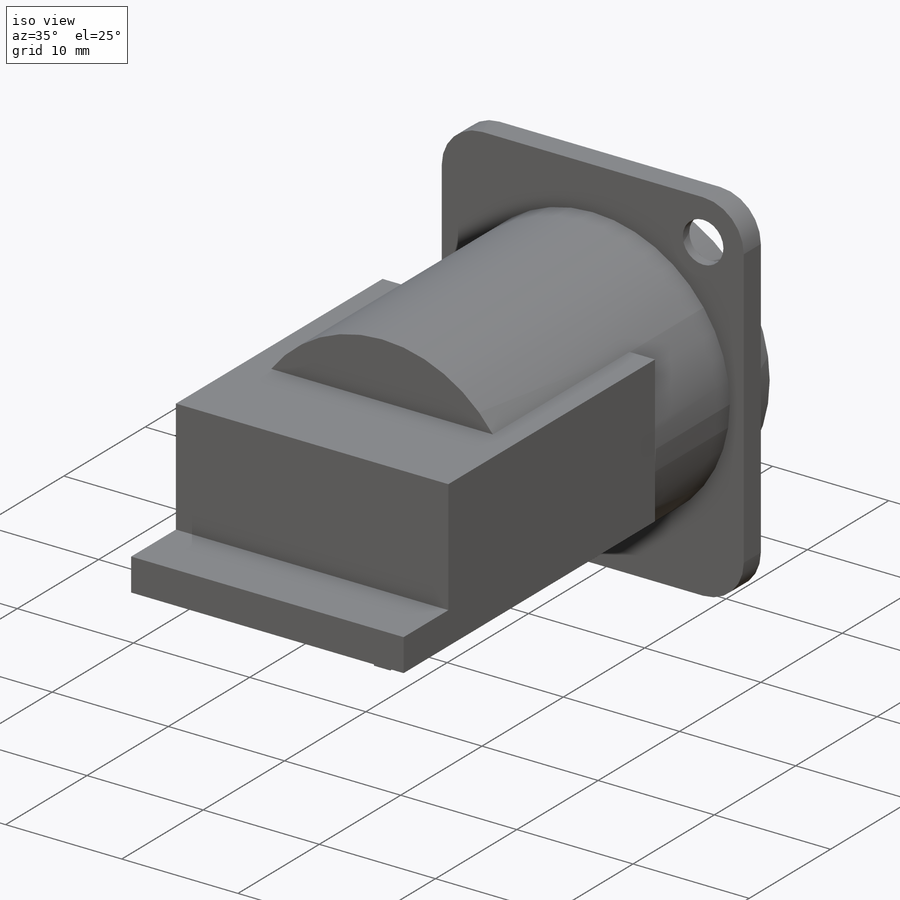
[diagram: iso view]
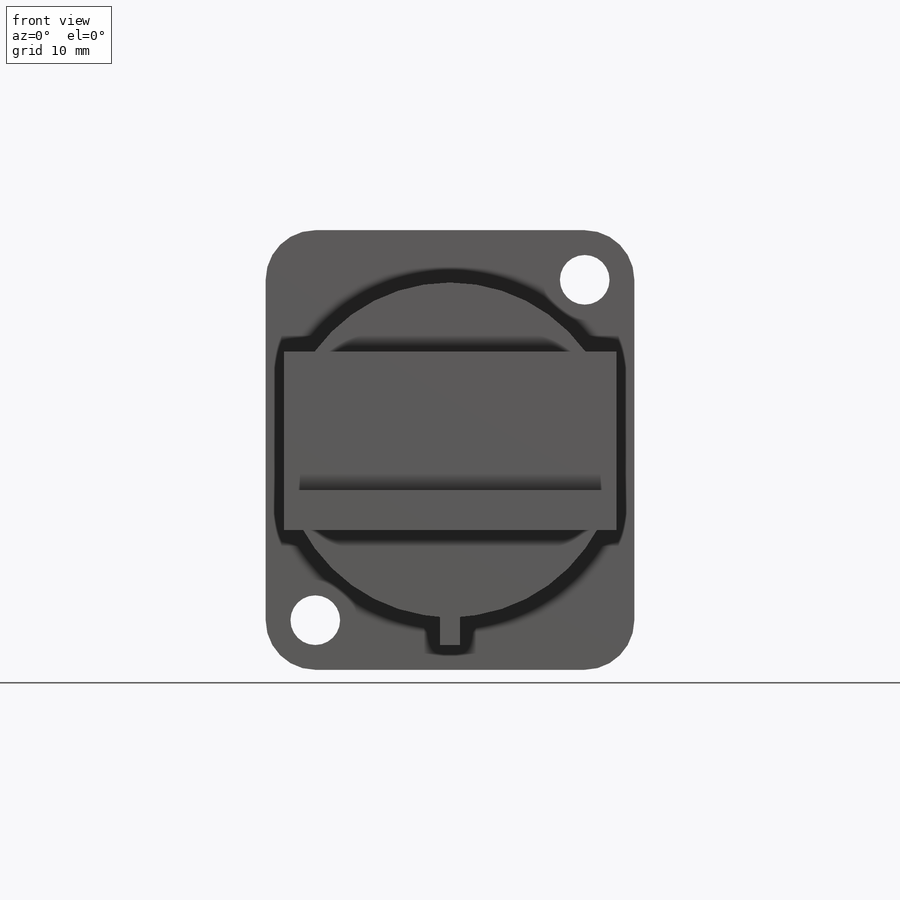
[diagram: front view]
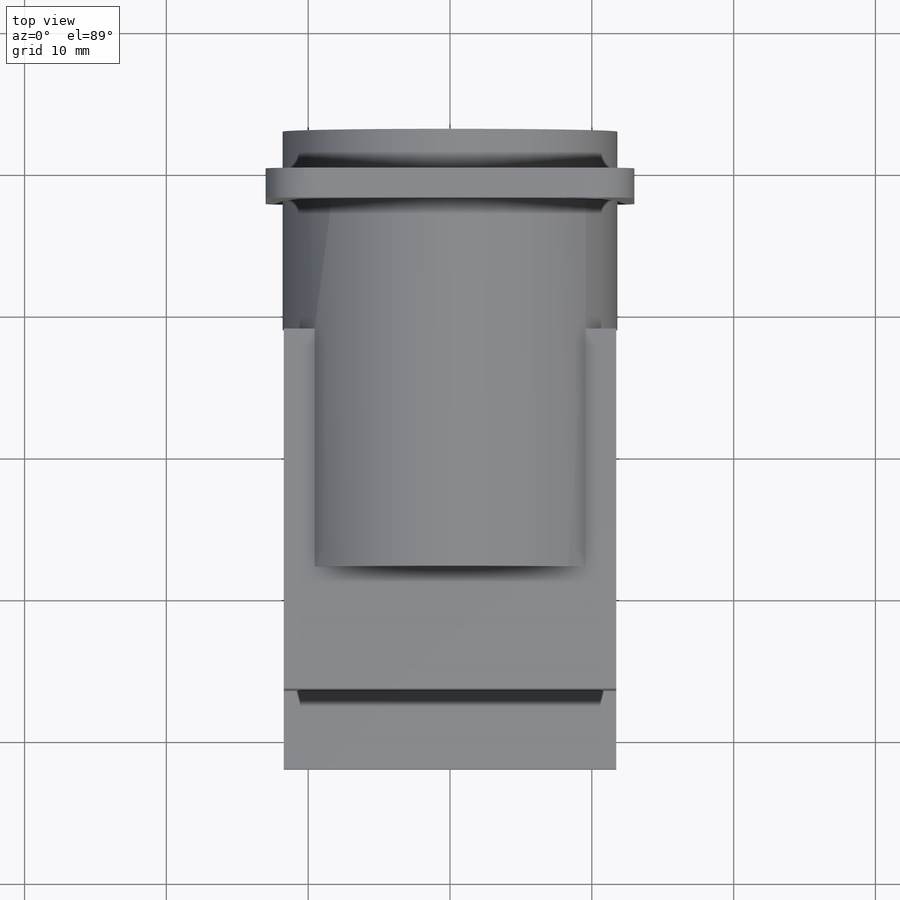
[diagram: top view]
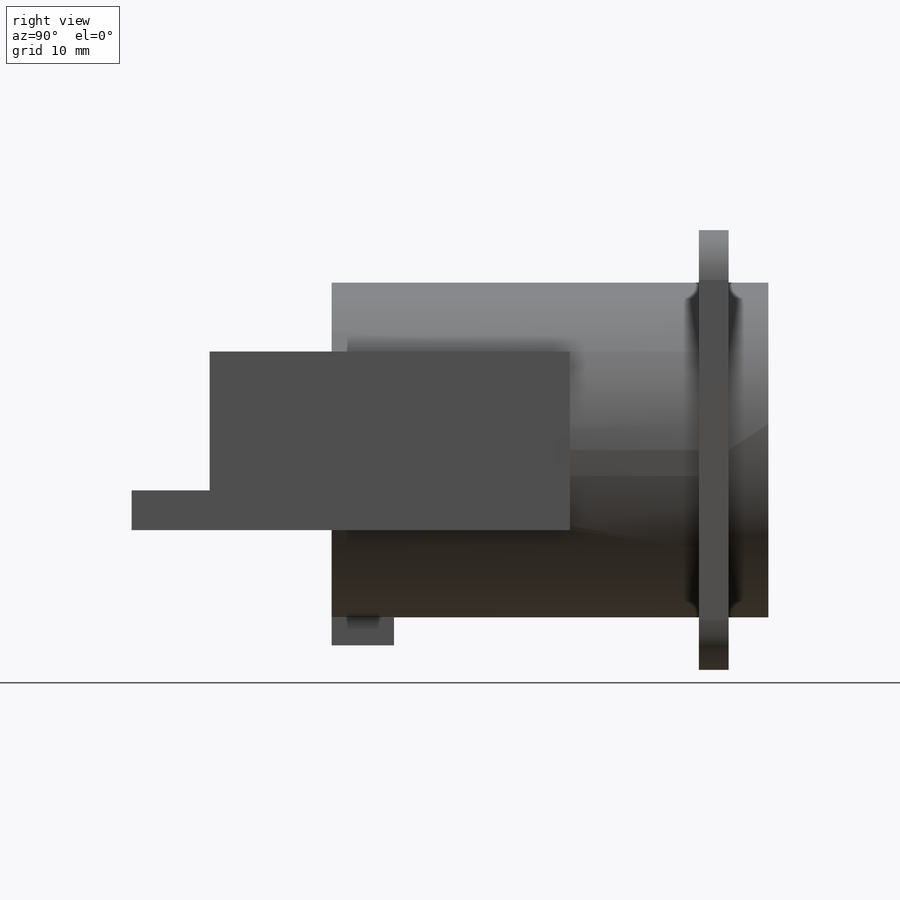
[diagram: right view]
SOLIDWORKS PART (.sldprt)
format: sldprt  version: not decoded by parser v0  size: 463,872 bytes
history: native  units: mm
features: sketch x21, extrude x10, plane x7, cut_extrude x7, hole x2, material x1, fillet x1 (+8 scaffold rows collapsed)
feature tree (57):
  scaffold x8  (default folders/planes/origin — collapsed)
  material  "Matériau <non spécifié>"
  plane  "Plan de face"
  plane  "Plan de dessus"
  plane  "Plan de droite"
  plane  "Plan1"
  sketch  "Esquisse1"
  extrude  "Boss.-Extru.1"  Depth=2.1mm
  sketch  "Esquisse2"
  extrude  "Boss.-Extru.2"  Depth=40mm
  sketch  "Esquisse3"
  extrude  "Boss.-Extru.3"  Depth=3.7mm
  sketch  "Esquisse4"
  extrude  "Boss.-Extru.4"  Depth=2.8mm
  hole  "Dégagement M181"  Diameter=20.9mm Depth=13.9mm
  sketch  "Esquisse6"
  sketch  "Esquisse5"  dims[hole-wizard template sketch: 46 standard entries collapsed; hole parameters kept: c15.Diamètre du perçage=20.9mm c15.Profondeur du perçage=13.9mm c15.D3=~14.816244mm c15.Angle de pointe=180.0deg]
  sketch  "Esquisse7"
  extrude  "Boss.-Extru.5"  Depth=10.7mm
  sketch  "Esquisse8"
  cut_extrude  "Enlèv. mat.-Extru.1"  Depth=10.8mm
  sketch  "Esquisse9"
  cut_extrude  "Enlèv. mat.-Extru.2"  Depth=0.5mm
  sketch  "Esquisse10"
  cut_extrude  "Enlèv. mat.-Extru.3"  Depth=30.9mm
  plane  "Plan2"  Offset=42.1mm
  sketch  "Esquisse11"
  extrude  "Boss.-Extru.6"  Depth=30.9mm
  sketch  "Esquisse12"
  cut_extrude  "Enlèv. mat.-Extru.4"  Depth=30.9mm
  sketch  "Esquisse13"
  extrude  "Boss.-Extru.7"  Depth=30.9mm
  sketch  "Esquisse14"
  extrude  "Boss.-Extru.8"  Depth=30.9mm
  sketch  "Esquisse15"
  extrude  "Boss.-Extru.9"  Depth=30.9mm
  plane  "Plan3"  Offset=28mm
  sketch  "Esquisse17"
  cut_extrude  "Enlèv. mat.-Extru.5"  Depth=14.1mm
  sketch  "Esquisse19"
  cut_extrude  "Enlèv. mat.-Extru.6"  Depth=14.1mm
  sketch  "Esquisse20"
  cut_extrude  "Enlèv. mat.-Extru.7"  Depth=23.45mm
  plane  "Plan4"
  sketch  "Esquisse21"
  extrude  "Boss.-Extru.10"  Depth=2mm
  hole  "Fraisage pour vis à tête fraisée M31"  Diameter=3.5mm Depth=42.1mm
  sketch  "Esquisse23"
  sketch  "Esquisse22"  dims[hole-wizard template sketch: 54 standard entries collapsed; hole parameters kept: c17.Diamètre du perçage jusqu'au prochain=3.5mm c17.Profondeur du perçage jusqu'au prochain=42.1mm c17.Diamètre du fraisage entrant=~6.099894mm c17.D4=~3.666174mm c17.Angle du fraisage entrant=~89.999002deg]
  fillet  "Congé1"  Radius=3.5mm
decode coverage: 22 of 41 modeling features carry decoded parameters
note: ~ marks probable driven/reference dimensions
note: suppression state not decoded; provenance and decode notes live in map.json
